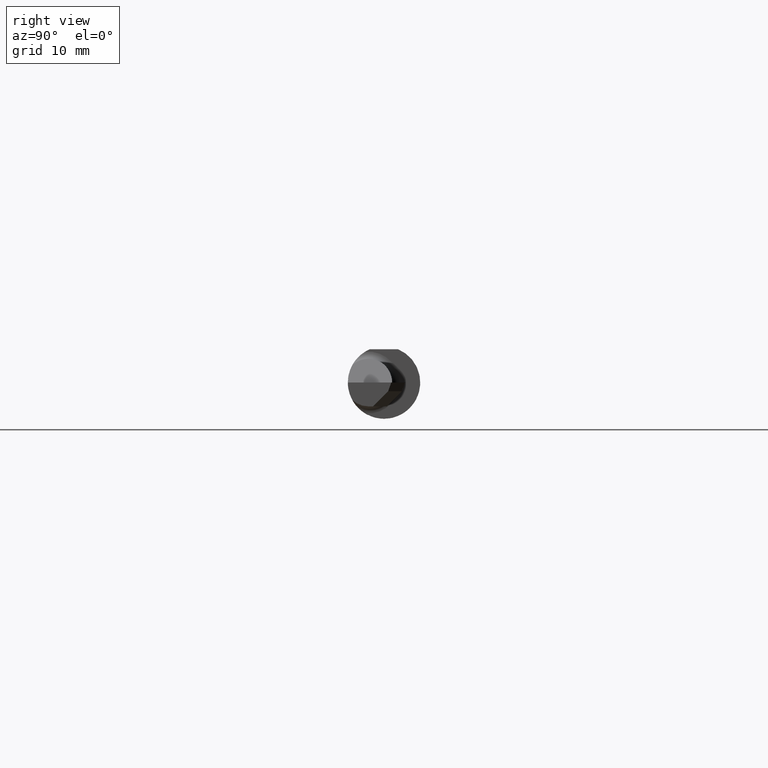
[diagram: clean part render]
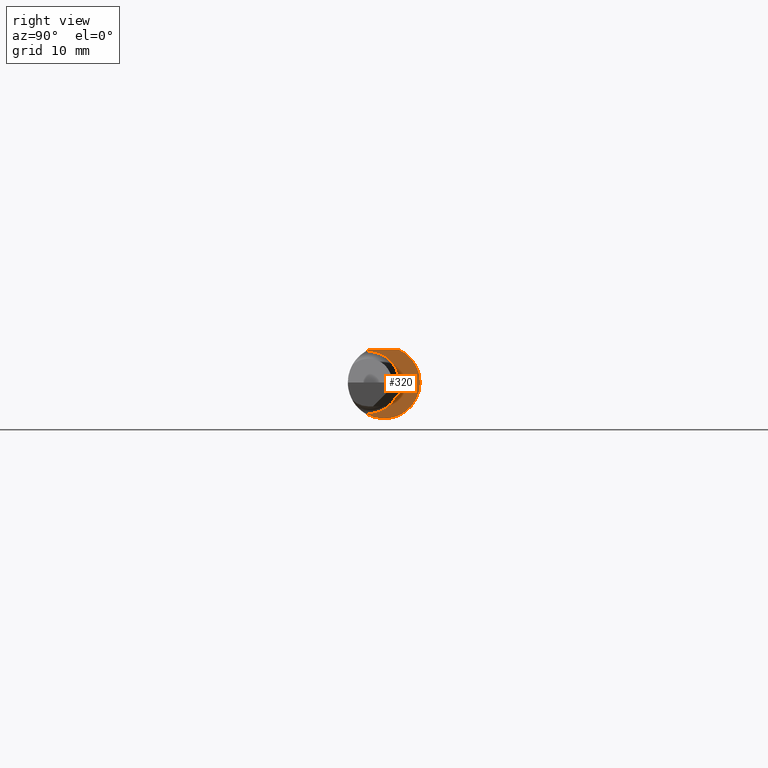
[diagram: same view with one face highlighted and labeled with its STEP entity id]
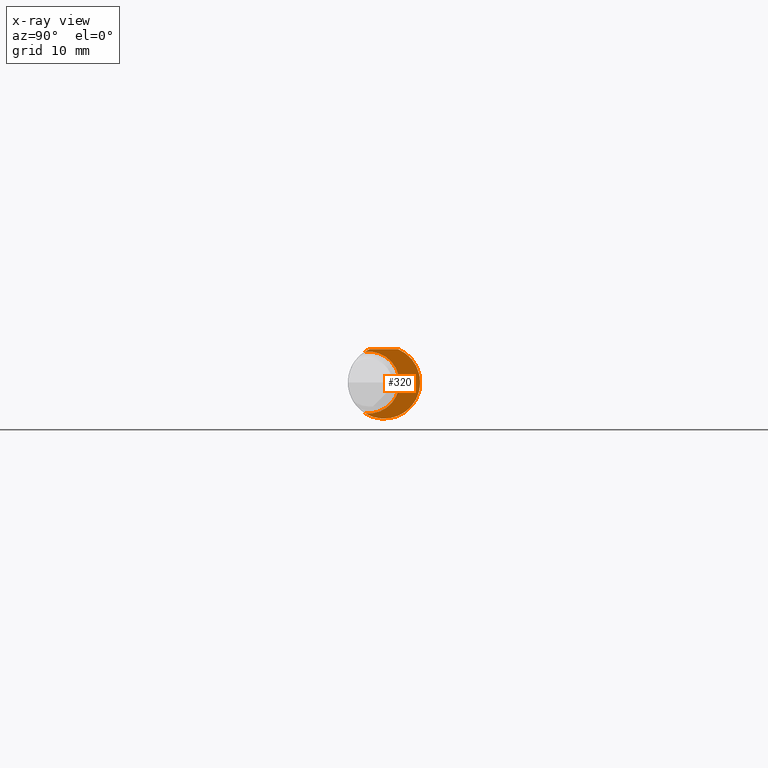
[diagram: x-ray of the same camera — body ghosted, the highlighted face saturated]
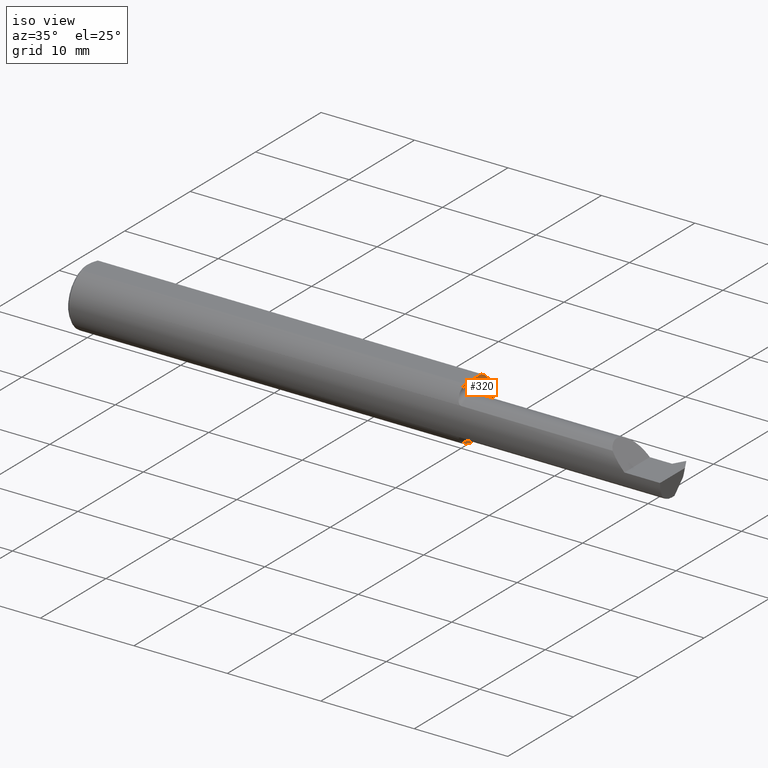
[diagram: same view with one face highlighted and labeled with its STEP entity id]
A machine part, right view. The second image highlights one B-rep face of the part: STEP entity #320.
The next image is the same camera in x-ray: the body ghosted, the highlighted face saturated — about 3% of this face is hidden behind the body in this view.
A second angle (iso view) of the same face is appended — the face is thin or edge-on in the first view.
In plain terms, the highlighted planar face has unit normal (1, 0, 0).
Its self-contained STEP definition (entity closure, byte-faithful):
#27 = CARTESIAN_POINT ( 'NONE',  ( 1.625000000000000222, 0.000000000000000000, 0.000000000000000000 ) ) ;
#45 = CARTESIAN_POINT ( 'NONE',  ( 1.625000000000000222, -0.06535139275766012334, 0.1063800637555460948 ) ) ;
#62 = VERTEX_POINT ( 'NONE', #106 ) ;
#64 = CIRCLE ( 'NONE', #100, 0.1248500000000000026 ) ;
#79 = ORIENTED_EDGE ( 'NONE', *, *, #655, .F. ) ;
#95 = DIRECTION ( 'NONE',  ( -5.250126673606354578E-17, 1.000000000000000000, 0.000000000000000000 ) ) ;
#99 = VECTOR ( 'NONE', #568, 39.37007874015748143 ) ;
#100 = AXIS2_PLACEMENT_3D ( 'NONE', #27, #517, #526 ) ;
#106 = CARTESIAN_POINT ( 'NONE',  ( 1.625000000000000222, -0.06535139275766012334, -0.1063800637555460948 ) ) ;
#133 = CARTESIAN_POINT ( 'NONE',  ( 1.625000000000000222, -0.04895916665957479597, 0.1148499999999999521 ) ) ;
#181 = DIRECTION ( 'NONE',  ( 0.000000000000000000, 1.000000000000000000, 0.000000000000000000 ) ) ;
#241 = CARTESIAN_POINT ( 'NONE',  ( 1.625000000000000222, 0.000000000000000000, 0.000000000000000000 ) ) ;
#258 = CARTESIAN_POINT ( 'NONE',  ( 1.625000000000000222, 0.1248499999999999471, 0.1148499999999999521 ) ) ;
#260 = EDGE_LOOP ( 'NONE', ( #488, #79, #751, #670 ) ) ;
#293 = DIRECTION ( 'NONE',  ( 1.000000000000000000, 5.250126673606354578E-17, 0.000000000000000000 ) ) ;
#320 = ADVANCED_FACE ( 'NONE', ( #337 ), #578, .T. ) ;
#337 = FACE_OUTER_BOUND ( 'NONE', #260, .T. ) ;
#341 = CARTESIAN_POINT ( 'NONE',  ( 1.625000000000000222, 0.04895916665957469188, 0.1148499999999999521 ) ) ;
#342 = EDGE_CURVE ( 'NONE', #551, #438, #64, .T. ) ;
#350 = EDGE_CURVE ( 'NONE', #438, #62, #405, .T. ) ;
#362 = LINE ( 'NONE', #258, #99 ) ;
#405 = CIRCLE ( 'NONE', #794, 0.1070000000000000118 ) ;
#421 = AXIS2_PLACEMENT_3D ( 'NONE', #642, #587, #95 ) ;
#438 = VERTEX_POINT ( 'NONE', #45 ) ;
#466 = DIRECTION ( 'NONE',  ( 0.000000000000000000, -1.000000000000000000, 0.000000000000000000 ) ) ;
#467 = VERTEX_POINT ( 'NONE', #341 ) ;
#488 = ORIENTED_EDGE ( 'NONE', *, *, #515, .T. ) ;
#515 = EDGE_CURVE ( 'NONE', #62, #467, #755, .T. ) ;
#517 = DIRECTION ( 'NONE',  ( 1.000000000000000000, 5.250126673606354578E-17, 0.000000000000000000 ) ) ;
#526 = DIRECTION ( 'NONE',  ( 0.000000000000000000, 1.000000000000000000, 0.000000000000000000 ) ) ;
#551 = VERTEX_POINT ( 'NONE', #133 ) ;
#568 = DIRECTION ( 'NONE',  ( -5.250126673606354578E-17, 1.000000000000000000, 0.000000000000000000 ) ) ;
#578 = PLANE ( 'NONE',  #421 ) ;
#587 = DIRECTION ( 'NONE',  ( 1.000000000000000000, 5.250126673606354578E-17, 0.000000000000000000 ) ) ;
#613 = AXIS2_PLACEMENT_3D ( 'NONE', #241, #293, #181 ) ;
#642 = CARTESIAN_POINT ( 'NONE',  ( 1.625000000000000222, 0.1248499999999999055, 0.000000000000000000 ) ) ;
#655 = EDGE_CURVE ( 'NONE', #551, #467, #362, .T. ) ;
#670 = ORIENTED_EDGE ( 'NONE', *, *, #350, .T. ) ;
#701 = CARTESIAN_POINT ( 'NONE',  ( 1.625000000000000222, -0.05385000000000010612, 0.000000000000000000 ) ) ;
#751 = ORIENTED_EDGE ( 'NONE', *, *, #342, .T. ) ;
#755 = CIRCLE ( 'NONE', #613, 0.1248500000000000026 ) ;
#772 = DIRECTION ( 'NONE',  ( -1.000000000000000000, -5.250126673606354578E-17, -0.000000000000000000 ) ) ;
#794 = AXIS2_PLACEMENT_3D ( 'NONE', #701, #772, #466 ) ;